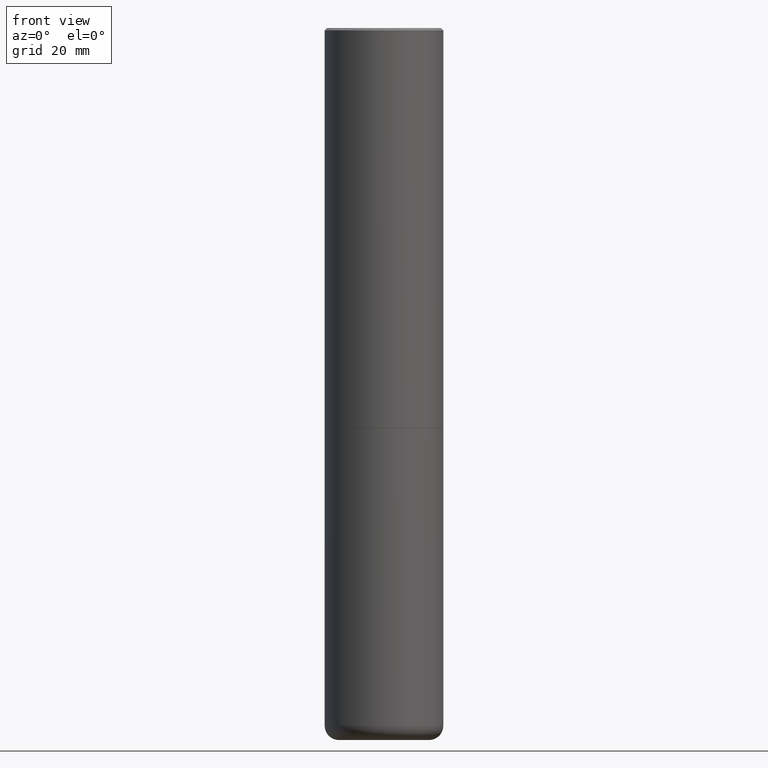
[diagram: clean part render]
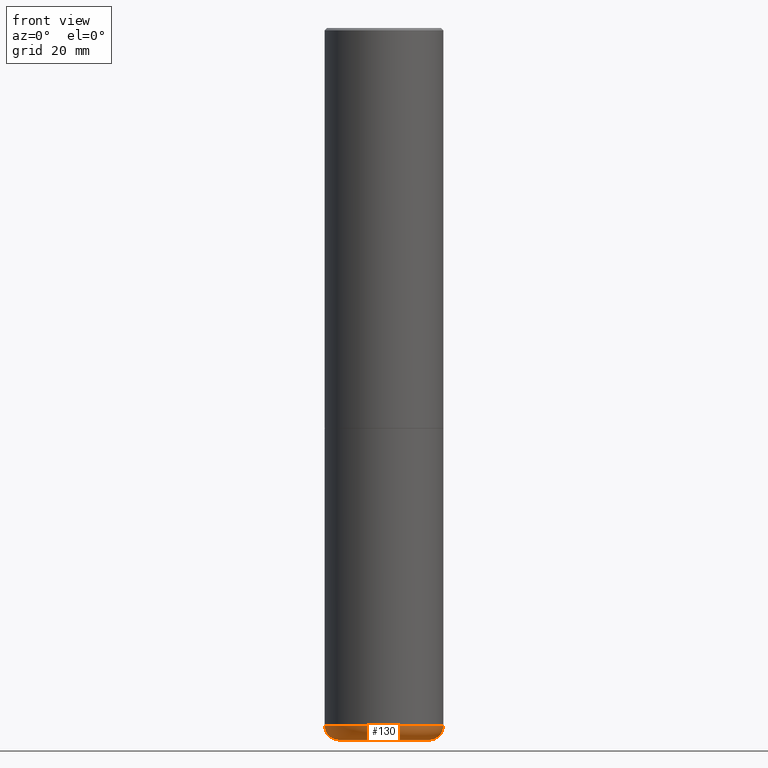
[diagram: same view with one face highlighted and labeled with its STEP entity id]
A machine part, front view. The second image highlights one B-rep face of the part: STEP entity #130.
In plain terms, the highlighted toroidal blend (fillet) surface has major radius 9.652 mm and minor (blend) radius 3.048 mm.
Its self-contained STEP definition (entity closure, byte-faithful):
#8 = AXIS2_PLACEMENT_3D ( 'NONE', #311, #277, #435 ) ;
#18 = VERTEX_POINT ( 'NONE', #363 ) ;
#20 = CIRCLE ( 'NONE', #159, 0.1200000000000004952 ) ;
#36 = TOROIDAL_SURFACE ( 'NONE', #433, 0.3800000000000003930, 0.1200000000000004952 ) ;
#52 = DIRECTION ( 'NONE',  ( -1.000000000000000000, 7.105427357600993970E-15, 0.000000000000000000 ) ) ;
#56 = DIRECTION ( 'NONE',  ( 1.000000000000000000, -6.982962677686265133E-15, 0.000000000000000000 ) ) ;
#73 = EDGE_CURVE ( 'NONE', #181, #239, #287, .T. ) ;
#76 = CARTESIAN_POINT ( 'NONE',  ( 1.437936775428365776E-28, -2.052992622578700095E-14, -5.880004569232298195 ) ) ;
#93 = AXIS2_PLACEMENT_3D ( 'NONE', #384, #390, #56 ) ;
#114 = ORIENTED_EDGE ( 'NONE', *, *, #242, .F. ) ;
#130 = ADVANCED_FACE ( 'NONE', ( #462 ), #36, .T. ) ;
#132 = CARTESIAN_POINT ( 'NONE',  ( -0.4999999999999999445, -1.260412419339080680E-14, -5.880004569232298195 ) ) ;
#133 = AXIS2_PLACEMENT_3D ( 'NONE', #76, #290, #451 ) ;
#135 = ORIENTED_EDGE ( 'NONE', *, *, #73, .F. ) ;
#138 = EDGE_CURVE ( 'NONE', #18, #315, #232, .T. ) ;
#140 = CIRCLE ( 'NONE', #8, 0.1200000000000004952 ) ;
#159 = AXIS2_PLACEMENT_3D ( 'NONE', #238, #350, #52 ) ;
#181 = VERTEX_POINT ( 'NONE', #132 ) ;
#232 = CIRCLE ( 'NONE', #93, 0.3789528157401960695 ) ;
#238 = CARTESIAN_POINT ( 'NONE',  ( -0.3800000000000003930, -1.782986382989861784E-14, -5.880004569232298195 ) ) ;
#239 = VERTEX_POINT ( 'NONE', #389 ) ;
#242 = EDGE_CURVE ( 'NONE', #18, #181, #20, .T. ) ;
#264 = CARTESIAN_POINT ( 'NONE',  ( 0.3789528157401960695, -2.359510140197678140E-14, -5.999999999999999112 ) ) ;
#277 = DIRECTION ( 'NONE',  ( -6.982962677686266711E-15, -1.000000000000000000, 3.491481338843145583E-15 ) ) ;
#287 = CIRCLE ( 'NONE', #133, 0.5000000000000000000 ) ;
#290 = DIRECTION ( 'NONE',  ( -2.445468806185136597E-29, 3.491481338843145583E-15, 1.000000000000000000 ) ) ;
#303 = EDGE_LOOP ( 'NONE', ( #114, #403, #482, #135 ) ) ;
#307 = CARTESIAN_POINT ( 'NONE',  ( 1.437936775428365776E-28, -2.052992622578700095E-14, -5.880004569232298195 ) ) ;
#311 = CARTESIAN_POINT ( 'NONE',  ( 0.3800000000000003930, -2.318345204330778419E-14, -5.880004569232298195 ) ) ;
#315 = VERTEX_POINT ( 'NONE', #264 ) ;
#350 = DIRECTION ( 'NONE',  ( 7.105427357601001859E-15, 1.000000000000000000, -3.491481338843145583E-15 ) ) ;
#363 = CARTESIAN_POINT ( 'NONE',  ( -0.3789528157401960695, -1.761673943792252384E-14, -5.999999999999999112 ) ) ;
#373 = EDGE_CURVE ( 'NONE', #315, #239, #140, .T. ) ;
#384 = CARTESIAN_POINT ( 'NONE',  ( 1.467281283711081734E-28, -2.094888803305886955E-14, -5.999999999999999112 ) ) ;
#389 = CARTESIAN_POINT ( 'NONE',  ( 0.5000000000000000000, -2.402140756463013115E-14, -5.880004569232298195 ) ) ;
#390 = DIRECTION ( 'NONE',  ( -2.445468806185136597E-29, 3.491481338843145583E-15, 1.000000000000000000 ) ) ;
#403 = ORIENTED_EDGE ( 'NONE', *, *, #138, .T. ) ;
#422 = DIRECTION ( 'NONE',  ( -2.445468806185136597E-29, 3.491481338843145583E-15, 1.000000000000000000 ) ) ;
#433 = AXIS2_PLACEMENT_3D ( 'NONE', #307, #422, #464 ) ;
#435 = DIRECTION ( 'NONE',  ( 1.000000000000000000, -6.982962677686271444E-15, 0.000000000000000000 ) ) ;
#451 = DIRECTION ( 'NONE',  ( 1.000000000000000000, -6.982962677686262766E-15, 0.000000000000000000 ) ) ;
#462 = FACE_OUTER_BOUND ( 'NONE', #303, .T. ) ;
#464 = DIRECTION ( 'NONE',  ( 1.000000000000000000, -6.982962677686265922E-15, 4.883557194083112901E-29 ) ) ;
#482 = ORIENTED_EDGE ( 'NONE', *, *, #373, .T. ) ;